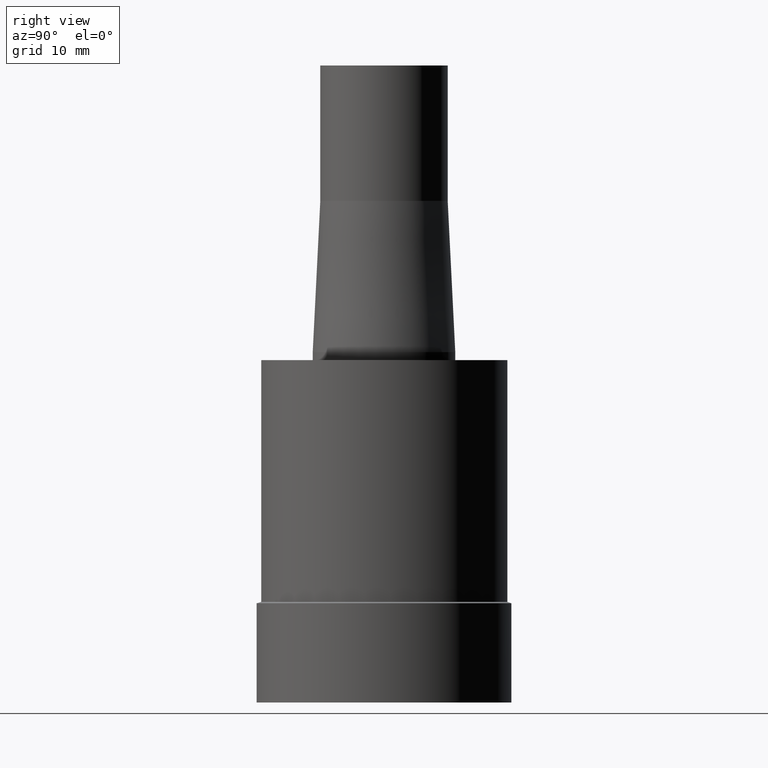
[diagram: clean part render]
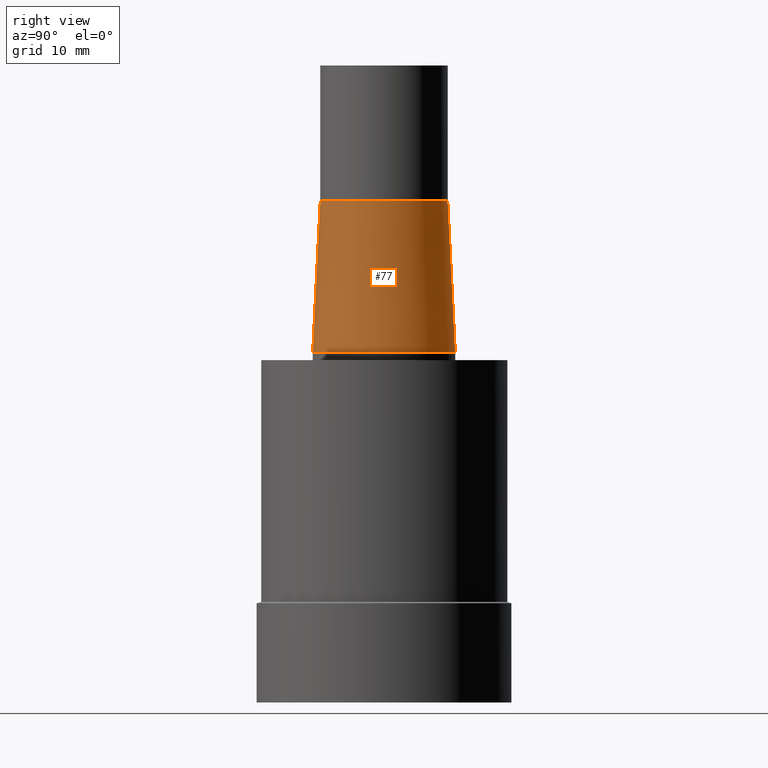
[diagram: same view with one face highlighted and labeled with its STEP entity id]
A machine part, right view. The second image highlights one B-rep face of the part: STEP entity #77.
In plain terms, the highlighted conical surface has half-angle 2.862 deg.
Its self-contained STEP definition (entity closure, byte-faithful):
#77=ADVANCED_FACE('',(#90,#91),#92,.T.);
#90=FACE_BOUND('',#115,.T.);
#91=FACE_BOUND('',#116,.T.);
#92=CONICAL_SURFACE('',#117,8.474986165,0.0499583959844522);
#115=EDGE_LOOP('',(#144));
#116=EDGE_LOOP('',(#145));
#117=AXIS2_PLACEMENT_3D('',#146,#147,#148);
#144=ORIENTED_EDGE('',*,*,#180,.F.);
#145=ORIENTED_EDGE('',*,*,#179,.T.);
#146=CARTESIAN_POINT('',(-3.27594713376925E-015,-6.5518942675385E-015,53.50027675));
#147=DIRECTION('',(6.12323399573677E-017,1.22464679914735E-016,-1.0));
#148=DIRECTION('',(-1.23259516440783E-032,1.0,1.22464679914735E-016));
#179=EDGE_CURVE('',#188,#188,#189,.T.);
#180=EDGE_CURVE('',#190,#190,#191,.T.);
#188=VERTEX_POINT('',#204);
#189=CIRCLE('',#205,8.0);
#190=VERTEX_POINT('',#206);
#191=CIRCLE('',#207,8.94997233);
#204=CARTESIAN_POINT('',(-3.85763741731416E-015,7.99999999999999,63.0));
#205=AXIS2_PLACEMENT_3D('',#221,#222,#223);
#206=CARTESIAN_POINT('',(-2.69425685022434E-015,8.94997232999999,44.0005535));
#207=AXIS2_PLACEMENT_3D('',#224,#225,#226);
#221=CARTESIAN_POINT('',(-3.85763741731416E-015,-7.71527483462832E-015,63.0));
#222=DIRECTION('',(6.12323399573677E-017,1.22464679914735E-016,-1.0));
#223=DIRECTION('',(-1.23259516440783E-032,1.0,1.22464679914735E-016));
#224=CARTESIAN_POINT('',(-2.69425685022434E-015,-5.38851370044868E-015,44.0005535));
#225=DIRECTION('',(6.12323399573677E-017,1.22464679914735E-016,-1.0));
#226=DIRECTION('',(-1.23259516440783E-032,1.0,1.22464679914735E-016));